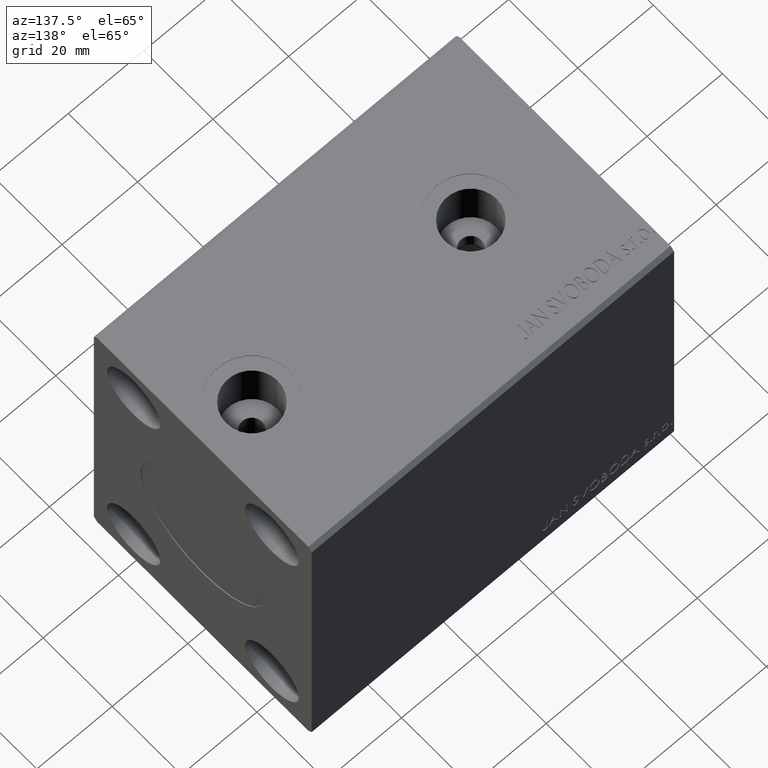
[diagram: clean part render]
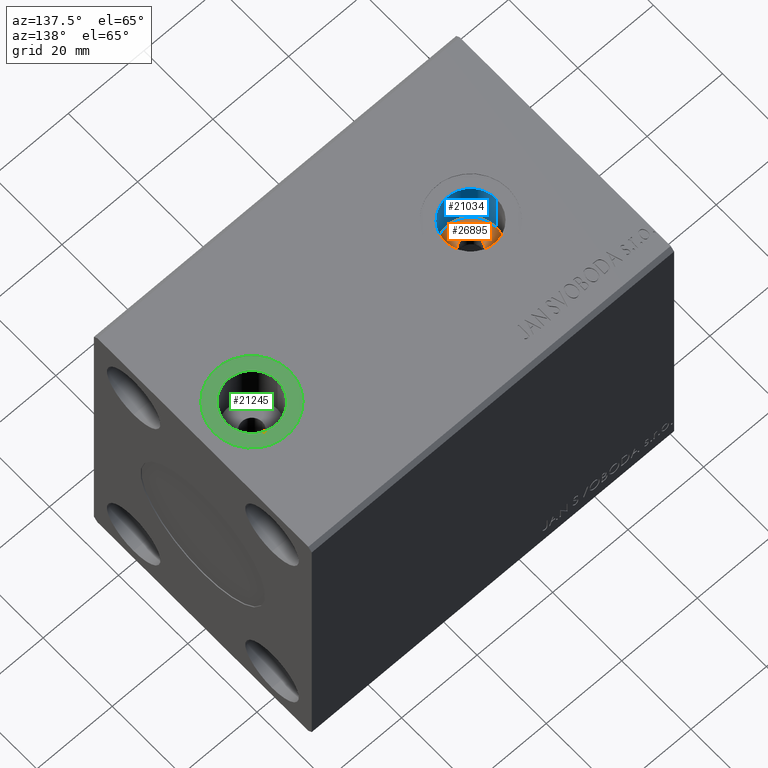
[diagram: same view with three faces highlighted in distinct colors, each labeled with its STEP entity id]
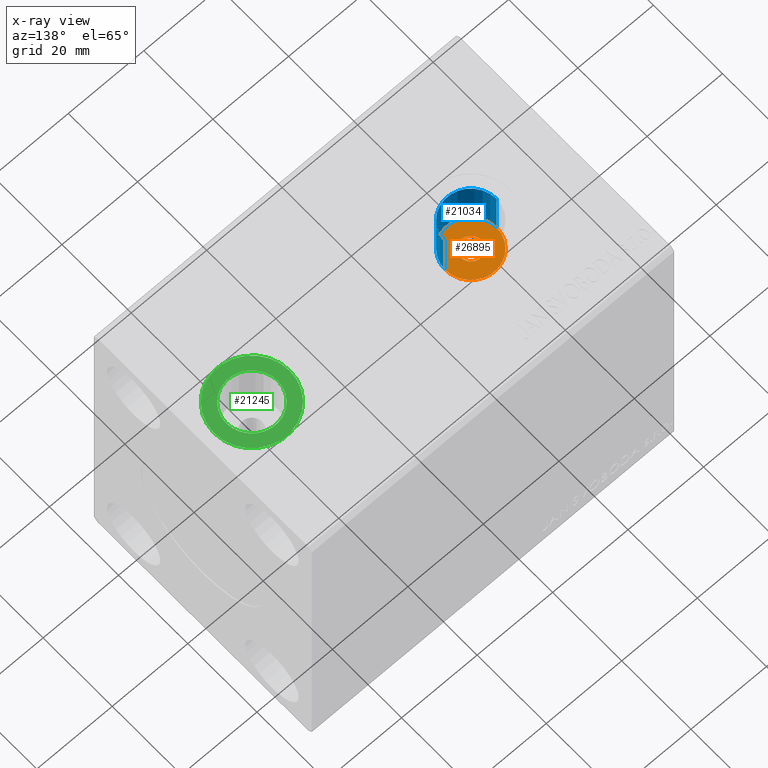
[diagram: x-ray of the same camera — body ghosted, the three highlighted faces saturated]
A machine part, auxiliary view with three faces highlighted in distinct colors.
The next image is the same camera in x-ray (body ghosted, the three faces saturated) — at least one of them is partly hidden behind the body in this view.
Their STEP definitions:

[orange] entity #26895 — the highlighted planar face has unit normal (0, 0, 1).
#2131 = ORIENTED_EDGE ( 'NONE', *, *, #34969, .T. ) ;
#3192 = DIRECTION ( 'NONE',  ( 0.000000000000000000, 0.000000000000000000, 1.000000000000000000 ) ) ;
#4765 = CARTESIAN_POINT ( 'NONE',  ( 27.75000000000000000, 8.673617379884031528E-16, 29.23999999999999488 ) ) ;
#5066 = AXIS2_PLACEMENT_3D ( 'NONE', #35539, #26525, #36385 ) ;
#5725 = CIRCLE ( 'NONE', #5066, 6.800000000000000711 ) ;
#8606 = EDGE_LOOP ( 'NONE', ( #2131, #23063 ) ) ;
#8982 = DIRECTION ( 'NONE',  ( 1.000000000000000000, 0.000000000000000000, -0.000000000000000000 ) ) ;
#9852 = CARTESIAN_POINT ( 'NONE',  ( 22.25000000000000355, 1.204139607753925007E-15, 29.23999999999999488 ) ) ;
#9961 = CIRCLE ( 'NONE', #29819, 6.800000000000000711 ) ;
#10603 = DIRECTION ( 'NONE',  ( 0.000000000000000000, 0.000000000000000000, 1.000000000000000000 ) ) ;
#11691 = CARTESIAN_POINT ( 'NONE',  ( 25.00000000000000000, 8.673617379884031528E-16, 29.23999999999999488 ) ) ;
#14718 = VERTEX_POINT ( 'NONE', #4765 ) ;
#17706 = DIRECTION ( 'NONE',  ( 1.000000000000000000, 0.000000000000000000, 0.000000000000000000 ) ) ;
#19271 = FACE_OUTER_BOUND ( 'NONE', #8606, .T. ) ;
#19367 = CIRCLE ( 'NONE', #24165, 2.749999999999999112 ) ;
#19484 = CARTESIAN_POINT ( 'NONE',  ( 25.00000000000000000, 8.673617379884031528E-16, 29.23999999999999488 ) ) ;
#20513 = CARTESIAN_POINT ( 'NONE',  ( 31.80000000000000071, 8.673617379884031528E-16, 29.23999999999999488 ) ) ;
#21446 = EDGE_CURVE ( 'NONE', #14718, #38883, #19367, .T. ) ;
#22465 = ORIENTED_EDGE ( 'NONE', *, *, #23210, .F. ) ;
#23039 = DIRECTION ( 'NONE',  ( 1.000000000000000000, 0.000000000000000000, 0.000000000000000000 ) ) ;
#23063 = ORIENTED_EDGE ( 'NONE', *, *, #23161, .T. ) ;
#23161 = EDGE_CURVE ( 'NONE', #39536, #33372, #5725, .T. ) ;
#23210 = EDGE_CURVE ( 'NONE', #38883, #14718, #24199, .T. ) ;
#23249 = CARTESIAN_POINT ( 'NONE',  ( 25.00000000000000000, 8.673617379884031528E-16, 29.23999999999999488 ) ) ;
#24165 = AXIS2_PLACEMENT_3D ( 'NONE', #23249, #10603, #23039 ) ;
#24199 = CIRCLE ( 'NONE', #39259, 2.749999999999999112 ) ;
#25265 = FACE_BOUND ( 'NONE', #35962, .T. ) ;
#26525 = DIRECTION ( 'NONE',  ( 0.000000000000000000, 0.000000000000000000, 1.000000000000000000 ) ) ;
#26895 = ADVANCED_FACE ( 'NONE', ( #25265, #19271 ), #28488, .T. ) ;
#27739 = CARTESIAN_POINT ( 'NONE',  ( 18.19999999999999929, 1.700121561408603067E-15, 29.23999999999999488 ) ) ;
#28488 = PLANE ( 'NONE',  #29727 ) ;
#29318 = DIRECTION ( 'NONE',  ( 1.000000000000000000, 0.000000000000000000, 0.000000000000000000 ) ) ;
#29727 = AXIS2_PLACEMENT_3D ( 'NONE', #19484, #38347, #8982 ) ;
#29819 = AXIS2_PLACEMENT_3D ( 'NONE', #11691, #34193, #17706 ) ;
#32293 = ORIENTED_EDGE ( 'NONE', *, *, #21446, .F. ) ;
#33167 = CARTESIAN_POINT ( 'NONE',  ( 25.00000000000000000, 8.673617379884031528E-16, 29.23999999999999488 ) ) ;
#33372 = VERTEX_POINT ( 'NONE', #20513 ) ;
#34193 = DIRECTION ( 'NONE',  ( 0.000000000000000000, 0.000000000000000000, 1.000000000000000000 ) ) ;
#34969 = EDGE_CURVE ( 'NONE', #33372, #39536, #9961, .T. ) ;
#35539 = CARTESIAN_POINT ( 'NONE',  ( 25.00000000000000000, 8.673617379884031528E-16, 29.23999999999999488 ) ) ;
#35962 = EDGE_LOOP ( 'NONE', ( #32293, #22465 ) ) ;
#36385 = DIRECTION ( 'NONE',  ( 1.000000000000000000, 0.000000000000000000, 0.000000000000000000 ) ) ;
#38347 = DIRECTION ( 'NONE',  ( 0.000000000000000000, 0.000000000000000000, 1.000000000000000000 ) ) ;
#38883 = VERTEX_POINT ( 'NONE', #9852 ) ;
#39259 = AXIS2_PLACEMENT_3D ( 'NONE', #33167, #3192, #29318 ) ;
#39536 = VERTEX_POINT ( 'NONE', #27739 ) ;

[blue] entity #21034 — the highlighted cylindrical surface (edge-blend (fillet) strip) has radius 6.8 mm, axis along (-0, -0, 1).
#3556 = ORIENTED_EDGE ( 'NONE', *, *, #32900, .F. ) ;
#4831 = DIRECTION ( 'NONE',  ( 1.000000000000000000, 0.000000000000000000, 0.000000000000000000 ) ) ;
#5066 = AXIS2_PLACEMENT_3D ( 'NONE', #35539, #26525, #36385 ) ;
#5725 = CIRCLE ( 'NONE', #5066, 6.800000000000000711 ) ;
#7949 = CARTESIAN_POINT ( 'NONE',  ( 25.00000000000000000, 8.673617379884031528E-16, 29.23999999999999488 ) ) ;
#9063 = DIRECTION ( 'NONE',  ( -0.000000000000000000, -0.000000000000000000, 1.000000000000000000 ) ) ;
#9270 = CARTESIAN_POINT ( 'NONE',  ( 18.19999999999999929, 1.700121561408603067E-15, 42.39999999999999147 ) ) ;
#11404 = VECTOR ( 'NONE', #9063, 1000.000000000000000 ) ;
#11581 = DIRECTION ( 'NONE',  ( -0.000000000000000000, -0.000000000000000000, 1.000000000000000000 ) ) ;
#12267 = AXIS2_PLACEMENT_3D ( 'NONE', #38034, #27961, #4831 ) ;
#12931 = CIRCLE ( 'NONE', #12267, 6.800000000000000711 ) ;
#13377 = EDGE_CURVE ( 'NONE', #39536, #38608, #20923, .T. ) ;
#14501 = VECTOR ( 'NONE', #27775, 1000.000000000000000 ) ;
#17811 = DIRECTION ( 'NONE',  ( 1.000000000000000000, 0.000000000000000000, 0.000000000000000000 ) ) ;
#18717 = LINE ( 'NONE', #25989, #11404 ) ;
#20479 = ORIENTED_EDGE ( 'NONE', *, *, #23161, .F. ) ;
#20513 = CARTESIAN_POINT ( 'NONE',  ( 31.80000000000000071, 8.673617379884031528E-16, 29.23999999999999488 ) ) ;
#20923 = LINE ( 'NONE', #23718, #14501 ) ;
#21034 = ADVANCED_FACE ( 'NONE', ( #31087 ), #27032, .F. ) ;
#23161 = EDGE_CURVE ( 'NONE', #39536, #33372, #5725, .T. ) ;
#23718 = CARTESIAN_POINT ( 'NONE',  ( 18.20000000000000284, 1.700121561408602870E-15, 29.23999999999999488 ) ) ;
#25989 = CARTESIAN_POINT ( 'NONE',  ( 31.80000000000000071, 8.673617379884031528E-16, 29.23999999999999488 ) ) ;
#26236 = CARTESIAN_POINT ( 'NONE',  ( 31.80000000000000071, 8.673617379884031528E-16, 42.39999999999999147 ) ) ;
#26525 = DIRECTION ( 'NONE',  ( 0.000000000000000000, 0.000000000000000000, 1.000000000000000000 ) ) ;
#27032 = CYLINDRICAL_SURFACE ( 'NONE', #34382, 6.800000000000000711 ) ;
#27739 = CARTESIAN_POINT ( 'NONE',  ( 18.19999999999999929, 1.700121561408603067E-15, 29.23999999999999488 ) ) ;
#27775 = DIRECTION ( 'NONE',  ( -0.000000000000000000, -0.000000000000000000, 1.000000000000000000 ) ) ;
#27961 = DIRECTION ( 'NONE',  ( 0.000000000000000000, 0.000000000000000000, 1.000000000000000000 ) ) ;
#28320 = ORIENTED_EDGE ( 'NONE', *, *, #40480, .T. ) ;
#30477 = ORIENTED_EDGE ( 'NONE', *, *, #13377, .T. ) ;
#31087 = FACE_OUTER_BOUND ( 'NONE', #40384, .T. ) ;
#32900 = EDGE_CURVE ( 'NONE', #33372, #38401, #18717, .T. ) ;
#33372 = VERTEX_POINT ( 'NONE', #20513 ) ;
#34382 = AXIS2_PLACEMENT_3D ( 'NONE', #7949, #11581, #17811 ) ;
#35539 = CARTESIAN_POINT ( 'NONE',  ( 25.00000000000000000, 8.673617379884031528E-16, 29.23999999999999488 ) ) ;
#36385 = DIRECTION ( 'NONE',  ( 1.000000000000000000, 0.000000000000000000, 0.000000000000000000 ) ) ;
#38034 = CARTESIAN_POINT ( 'NONE',  ( 25.00000000000000000, 8.673617379884031528E-16, 42.39999999999999147 ) ) ;
#38401 = VERTEX_POINT ( 'NONE', #26236 ) ;
#38608 = VERTEX_POINT ( 'NONE', #9270 ) ;
#39536 = VERTEX_POINT ( 'NONE', #27739 ) ;
#40384 = EDGE_LOOP ( 'NONE', ( #20479, #30477, #28320, #3556 ) ) ;
#40480 = EDGE_CURVE ( 'NONE', #38608, #38401, #12931, .T. ) ;

[green] entity #21245 — the highlighted planar face has unit normal (0, 0, 1).
#172 = DIRECTION ( 'NONE',  ( 0.000000000000000000, 0.000000000000000000, 1.000000000000000000 ) ) ;
#2041 = DIRECTION ( 'NONE',  ( 1.000000000000000000, 0.000000000000000000, 0.000000000000000000 ) ) ;
#2134 = EDGE_CURVE ( 'NONE', #40130, #11565, #15604, .T. ) ;
#3629 = EDGE_LOOP ( 'NONE', ( #7600, #21685 ) ) ;
#3951 = EDGE_LOOP ( 'NONE', ( #39533, #29249 ) ) ;
#6189 = AXIS2_PLACEMENT_3D ( 'NONE', #24031, #24448, #8160 ) ;
#7074 = AXIS2_PLACEMENT_3D ( 'NONE', #7487, #16923, #26780 ) ;
#7487 = CARTESIAN_POINT ( 'NONE',  ( 83.00000000000000000, 0.000000000000000000, 42.39999999999999147 ) ) ;
#7600 = ORIENTED_EDGE ( 'NONE', *, *, #2134, .F. ) ;
#8160 = DIRECTION ( 'NONE',  ( 1.000000000000000000, 0.000000000000000000, 0.000000000000000000 ) ) ;
#8370 = DIRECTION ( 'NONE',  ( 0.000000000000000000, 0.000000000000000000, 1.000000000000000000 ) ) ;
#9423 = EDGE_CURVE ( 'NONE', #28016, #20067, #32893, .T. ) ;
#10240 = CARTESIAN_POINT ( 'NONE',  ( 89.80000000000001137, 0.000000000000000000, 42.39999999999999147 ) ) ;
#10276 = FACE_BOUND ( 'NONE', #3629, .T. ) ;
#11565 = VERTEX_POINT ( 'NONE', #15491 ) ;
#15491 = CARTESIAN_POINT ( 'NONE',  ( 76.20000000000000284, 8.327598234201995202E-16, 42.39999999999999147 ) ) ;
#15604 = CIRCLE ( 'NONE', #32739, 6.800000000000000711 ) ;
#15883 = AXIS2_PLACEMENT_3D ( 'NONE', #24743, #37606, #2041 ) ;
#16347 = CIRCLE ( 'NONE', #17722, 10.00000000000000888 ) ;
#16923 = DIRECTION ( 'NONE',  ( 0.000000000000000000, 0.000000000000000000, 1.000000000000000000 ) ) ;
#17303 = CARTESIAN_POINT ( 'NONE',  ( 83.00000000000000000, 0.000000000000000000, 42.39999999999999147 ) ) ;
#17722 = AXIS2_PLACEMENT_3D ( 'NONE', #17303, #172, #29946 ) ;
#18224 = DIRECTION ( 'NONE',  ( 1.000000000000000000, 0.000000000000000000, 0.000000000000000000 ) ) ;
#19391 = EDGE_CURVE ( 'NONE', #11565, #40130, #28883, .T. ) ;
#20067 = VERTEX_POINT ( 'NONE', #42353 ) ;
#21245 = ADVANCED_FACE ( 'NONE', ( #10276, #26997 ), #23775, .T. ) ;
#21685 = ORIENTED_EDGE ( 'NONE', *, *, #19391, .F. ) ;
#23775 = PLANE ( 'NONE',  #7074 ) ;
#24031 = CARTESIAN_POINT ( 'NONE',  ( 83.00000000000000000, 0.000000000000000000, 42.39999999999999147 ) ) ;
#24448 = DIRECTION ( 'NONE',  ( 0.000000000000000000, 0.000000000000000000, 1.000000000000000000 ) ) ;
#24743 = CARTESIAN_POINT ( 'NONE',  ( 83.00000000000000000, 0.000000000000000000, 42.39999999999999147 ) ) ;
#25491 = CARTESIAN_POINT ( 'NONE',  ( 83.00000000000000000, 0.000000000000000000, 42.39999999999999147 ) ) ;
#26780 = DIRECTION ( 'NONE',  ( 1.000000000000000000, 0.000000000000000000, -0.000000000000000000 ) ) ;
#26997 = FACE_OUTER_BOUND ( 'NONE', #3951, .T. ) ;
#28016 = VERTEX_POINT ( 'NONE', #32932 ) ;
#28883 = CIRCLE ( 'NONE', #15883, 6.800000000000000711 ) ;
#29249 = ORIENTED_EDGE ( 'NONE', *, *, #39253, .T. ) ;
#29946 = DIRECTION ( 'NONE',  ( 1.000000000000000000, 0.000000000000000000, 0.000000000000000000 ) ) ;
#32739 = AXIS2_PLACEMENT_3D ( 'NONE', #25491, #8370, #18224 ) ;
#32893 = CIRCLE ( 'NONE', #6189, 10.00000000000000888 ) ;
#32932 = CARTESIAN_POINT ( 'NONE',  ( 93.00000000000001421, 0.000000000000000000, 42.39999999999999147 ) ) ;
#37606 = DIRECTION ( 'NONE',  ( 0.000000000000000000, 0.000000000000000000, 1.000000000000000000 ) ) ;
#39253 = EDGE_CURVE ( 'NONE', #20067, #28016, #16347, .T. ) ;
#39533 = ORIENTED_EDGE ( 'NONE', *, *, #9423, .T. ) ;
#40130 = VERTEX_POINT ( 'NONE', #10240 ) ;
#42353 = CARTESIAN_POINT ( 'NONE',  ( 73.00000000000000000, 1.224646799147354440E-15, 42.39999999999999147 ) ) ;